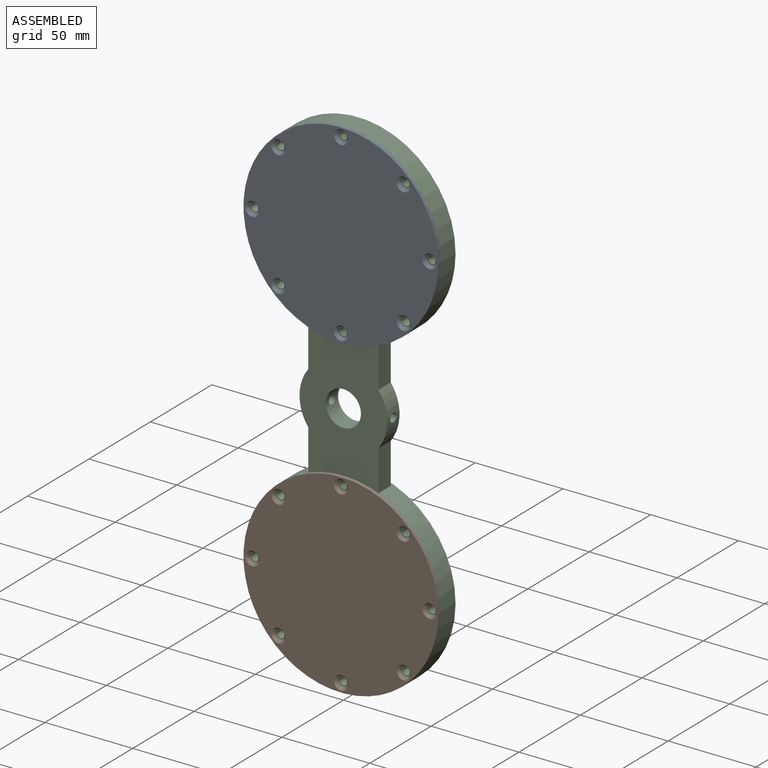
[diagram: assembled view]
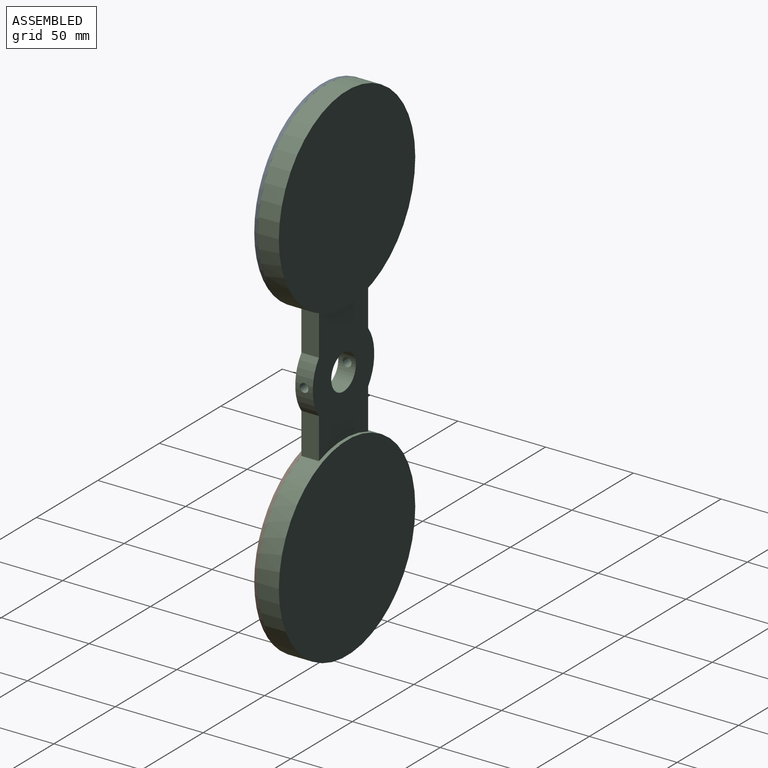
[diagram: assembled view, second angle]
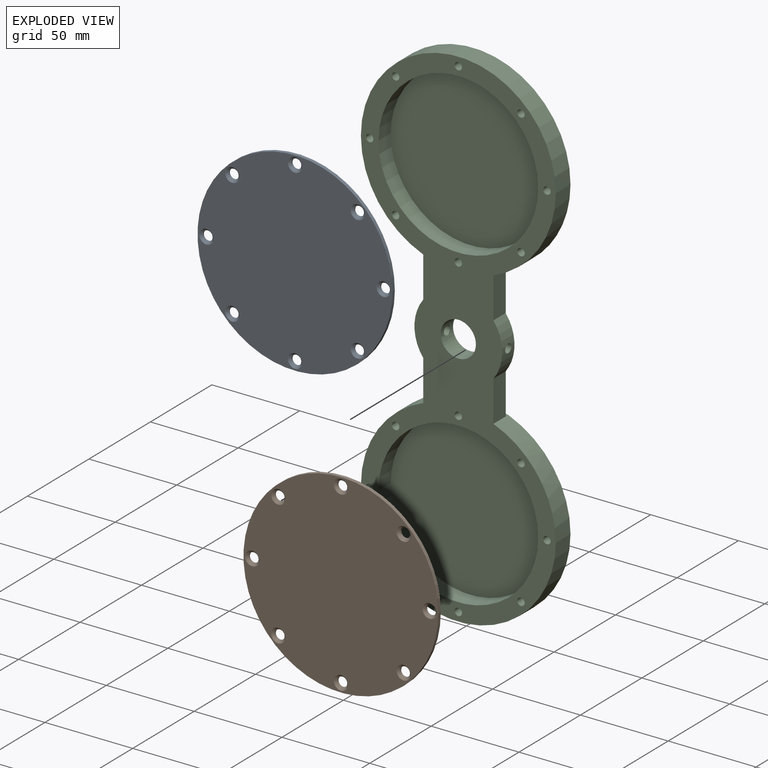
[diagram: exploded view]
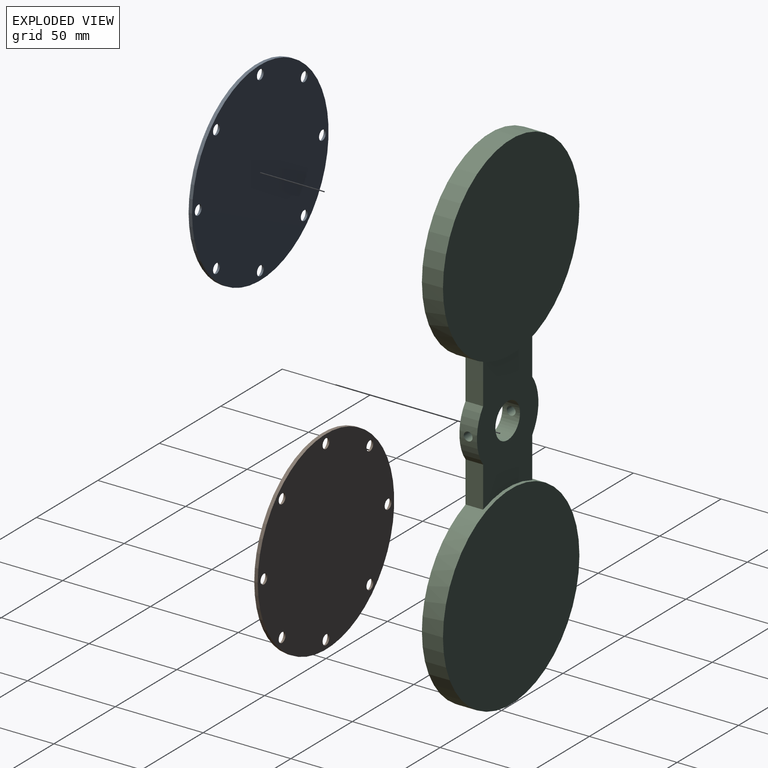
[diagram: exploded view, second angle]
ASSEMBLY  parts=3 mates=2
PART A: 19 faces, bbox 111x2x111 mm
  f0: cylinder r=55.5mm len=111mm, axis (0,1,0), area 697.4mm2, adj f1,f2
  f1: plane 111x111mm, normal (0,-1,0), area 9274.8mm2, adj f0,f4,f6,f8,f10,f12,f14,f16
  f2: plane 111x111mm, normal (0,1,0), area 9486.8mm2, adj f0,f3,f5,f7,f9,f11,f13,f15
  f3: cylinder r=2.75mm len=5.5mm, axis (0,-1,0), area 13mm2, adj f2,f4
  f4: cone r=2.75mm half-angle=45deg, axis (0,-1,0), area 37.5mm2, adj f1,f3
  f5: cylinder r=2.75mm len=5.5mm, axis (0,-1,0), area 13mm2, adj f2,f6
  f6: cone r=2.75mm half-angle=45deg, axis (0,-1,0), area 37.5mm2, adj f1,f5
  f7: cylinder r=2.75mm len=5.5mm, axis (0,-1,0), area 13mm2, adj f2,f8
  f8: cone r=2.75mm half-angle=45deg, axis (0,-1,0), area 37.5mm2, adj f1,f7
  f9: cylinder r=2.75mm len=5.5mm, axis (0,-1,0), area 13mm2, adj f2,f10
  f10: cone r=2.75mm half-angle=45deg, axis (0,-1,0), area 37.5mm2, adj f1,f9
  f11: cylinder r=2.75mm len=5.5mm, axis (0,-1,0), area 13mm2, adj f2,f12
  f12: cone r=2.75mm half-angle=45deg, axis (0,-1,0), area 37.5mm2, adj f1,f11
  f13: cylinder r=2.75mm len=5.5mm, axis (0,-1,0), area 13mm2, adj f2,f14
  f14: cone r=2.75mm half-angle=45deg, axis (0,-1,0), area 37.5mm2, adj f1,f13
  f15: cylinder r=2.75mm len=5.5mm, axis (0,-1,0), area 13mm2, adj f2,f16
  f16: cone r=2.75mm half-angle=45deg, axis (0,-1,0), area 37.5mm2, adj f1,f15
  f17: cylinder r=2.75mm len=5.5mm, axis (0,-1,0), area 13mm2, adj f2,f18
  f18: cone r=2.75mm half-angle=45deg, axis (0,-1,0), area 37.5mm2, adj f1,f17
PART B: same geometry as A
PART C: 51 faces, bbox 111x12x291 mm
  f0: cylinder r=10.01mm len=20.02mm, axis (0,1,0), area 589.3mm2, adj f7,f8,f49,f50
  f1: cylinder r=25mm len=30mm, axis (0,-1,0), area 302.1mm2, adj f4,f6,f7,f8,f50
  f2: cylinder r=25mm len=30mm, axis (0,-1,0), area 302.1mm2, adj f3,f5,f7,f8,f49
  f3: plane 23.23x10mm, normal (-1,0,0), area 232.3mm2, adj f2,f7,f8,f9
  f4: plane 23.23x10mm, normal (1,0,0), area 232.3mm2, adj f1,f7,f8,f9
  f5: plane 23.23x10mm, normal (-1,0,0), area 232.3mm2, adj f2,f7,f8,f11
  f6: plane 23.23x10mm, normal (1,0,0), area 232.3mm2, adj f1,f7,f8,f11
  f7: plane 291x111mm, normal (0,-1,0), area 8872mm2, adj f0,f1,f2,f3,f4,f5,f6,f9
  f8: plane 76.46x50mm, normal (0,1,0), area 2747.6mm2, adj f0,f1,f2,f3,f4,f5,f6,f9
  f9: cylinder r=55.5mm len=111mm, axis (0,-1,0), area 3775.4mm2, adj f3,f4,f7,f8,f10
  f10: plane 111x111mm, normal (0,1,0), area 9676.9mm2, adj f9
  f11: cylinder r=55.5mm len=111mm, axis (0,-1,0), area 3775.4mm2, adj f5,f6,f7,f8,f12
  f12: plane 111x111mm, normal (0,1,0), area 9676.9mm2, adj f11
  f13: cylinder r=45.5mm len=91mm, axis (0,-1,0), area 2858.8mm2, adj f7,f14
  f14: plane 91x91mm, normal (0,-1,0), area 6503.9mm2, adj f13
  f15: cylinder r=45.5mm len=91mm, axis (0,-1,0), area 2858.8mm2, adj f7,f16
  f16: plane 91x91mm, normal (0,-1,0), area 6503.9mm2, adj f15
  f17: cylinder r=2.1mm len=10mm, axis (0,1,0), area 131.9mm2, adj f7,f18
  f18: plane 4.2x4.2mm, normal (0,-1,0), area 13.9mm2, adj f17
  f19: cylinder r=2.1mm len=10mm, axis (0,1,0), area 131.9mm2, adj f7,f20
  f20: plane 4.2x4.2mm, normal (0,-1,0), area 13.9mm2, adj f19
  f21: cylinder r=2.1mm len=10mm, axis (0,1,0), area 131.9mm2, adj f7,f22
  f22: plane 4.2x4.2mm, normal (0,-1,0), area 13.9mm2, adj f21
  f23: cylinder r=2.1mm len=10mm, axis (0,1,0), area 131.9mm2, adj f7,f24
  f24: plane 4.2x4.2mm, normal (0,-1,0), area 13.9mm2, adj f23
  f25: cylinder r=2.1mm len=10mm, axis (0,1,0), area 131.9mm2, adj f7,f26
  f26: plane 4.2x4.2mm, normal (0,-1,0), area 13.9mm2, adj f25
  f27: cylinder r=2.1mm len=10mm, axis (0,1,0), area 131.9mm2, adj f7,f28
  f28: plane 4.2x4.2mm, normal (0,-1,0), area 13.9mm2, adj f27
  f29: cylinder r=2.1mm len=10mm, axis (0,1,0), area 131.9mm2, adj f7,f30
  f30: plane 4.2x4.2mm, normal (0,-1,0), area 13.9mm2, adj f29
  f31: cylinder r=2.1mm len=10mm, axis (0,1,0), area 131.9mm2, adj f7,f32
  f32: plane 4.2x4.2mm, normal (0,-1,0), area 13.9mm2, adj f31
  f33: cylinder r=2.1mm len=10.15mm, axis (0,-1,0), area 133.9mm2, adj f7,f34
  f34: cone r=0mm half-angle=59deg, axis (0,-1,0), area 16.2mm2, adj f33
  f35: cylinder r=2.1mm len=10.15mm, axis (0,-1,0), area 133.9mm2, adj f7,f36
  f36: cone r=0mm half-angle=59deg, axis (0,-1,0), area 16.2mm2, adj f35
  f37: cylinder r=2.1mm len=10.15mm, axis (0,-1,0), area 133.9mm2, adj f7,f38
  f38: cone r=0mm half-angle=59deg, axis (0,-1,0), area 16.2mm2, adj f37
  f39: cylinder r=2.1mm len=10.15mm, axis (0,-1,0), area 133.9mm2, adj f7,f40
  f40: cone r=0mm half-angle=59deg, axis (0,-1,0), area 16.2mm2, adj f39
  f41: cylinder r=2.1mm len=10.15mm, axis (0,-1,0), area 133.9mm2, adj f7,f42
  f42: cone r=0mm half-angle=59deg, axis (0,-1,0), area 16.2mm2, adj f41
  f43: cylinder r=2.1mm len=10.15mm, axis (0,-1,0), area 133.9mm2, adj f7,f44
  f44: cone r=0mm half-angle=59deg, axis (0,-1,0), area 16.2mm2, adj f43
  f45: cylinder r=2.1mm len=10.15mm, axis (0,-1,0), area 133.9mm2, adj f7,f46
  f46: cone r=0mm half-angle=59deg, axis (0,-1,0), area 16.2mm2, adj f45
  f47: cylinder r=2.1mm len=10.15mm, axis (0,-1,0), area 133.9mm2, adj f7,f48
  f48: cone r=0mm half-angle=59deg, axis (0,-1,0), area 16.2mm2, adj f47
  f49: cylinder r=2.5mm len=15.31mm, axis (1,0,0), area 237mm2, adj f0,f2
  f50: cylinder r=2.5mm len=15.31mm, axis (-1,0,0), area 237mm2, adj f0,f1
PLACE A t=(0,0,180)mm
PLACE B at identity
PLACE C t=(0,10,90)mm
MATE fastened C.f17 <-> A.f3  axis (0,-1,0) through (0,0,230.5)mm
MATE fastened C.f45 <-> B.f11  axis (0,-1,0) through (0,0,-50.5)mm
